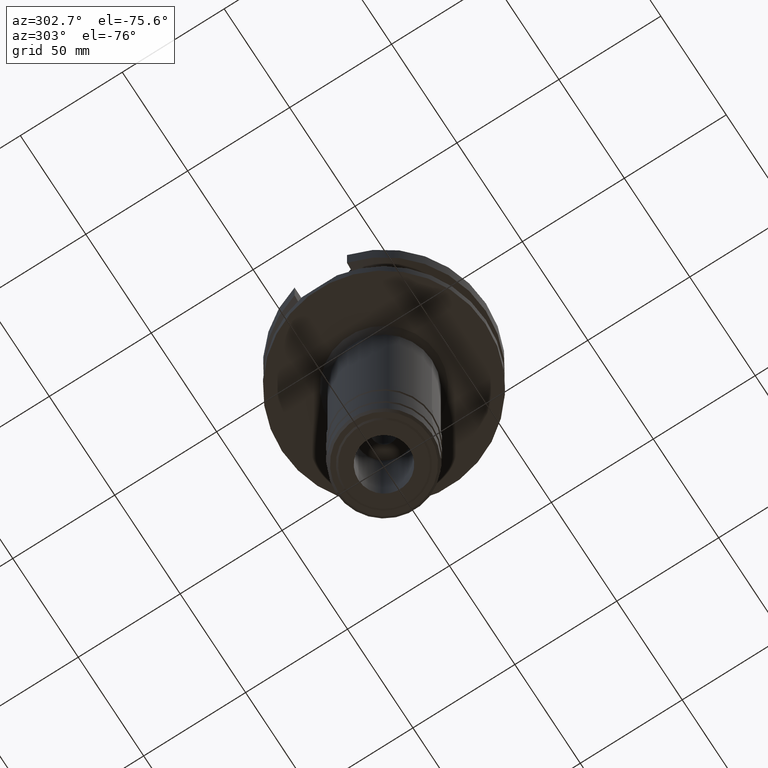
[diagram: clean part render]
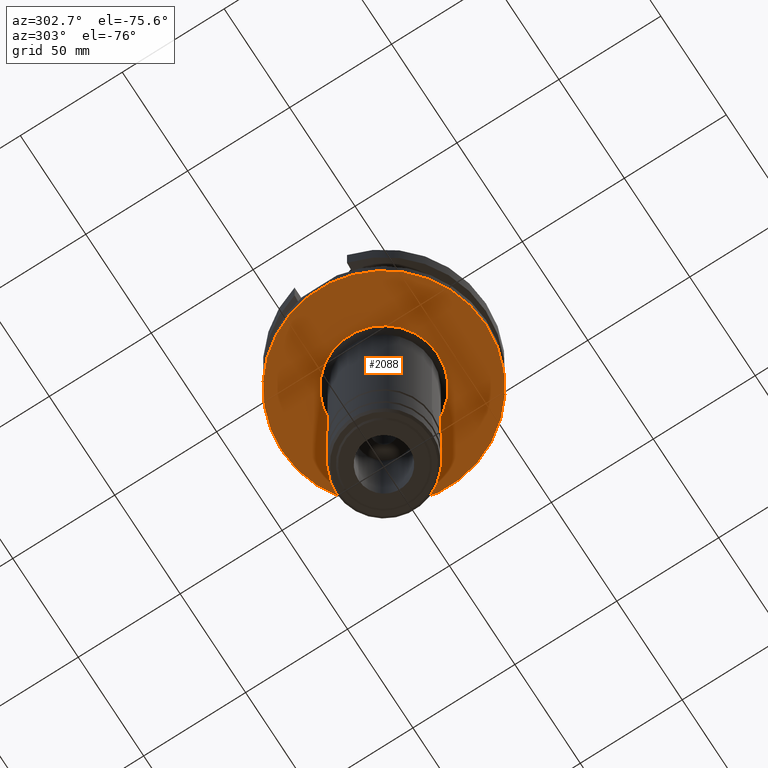
[diagram: same view with one face highlighted and labeled with its STEP entity id]
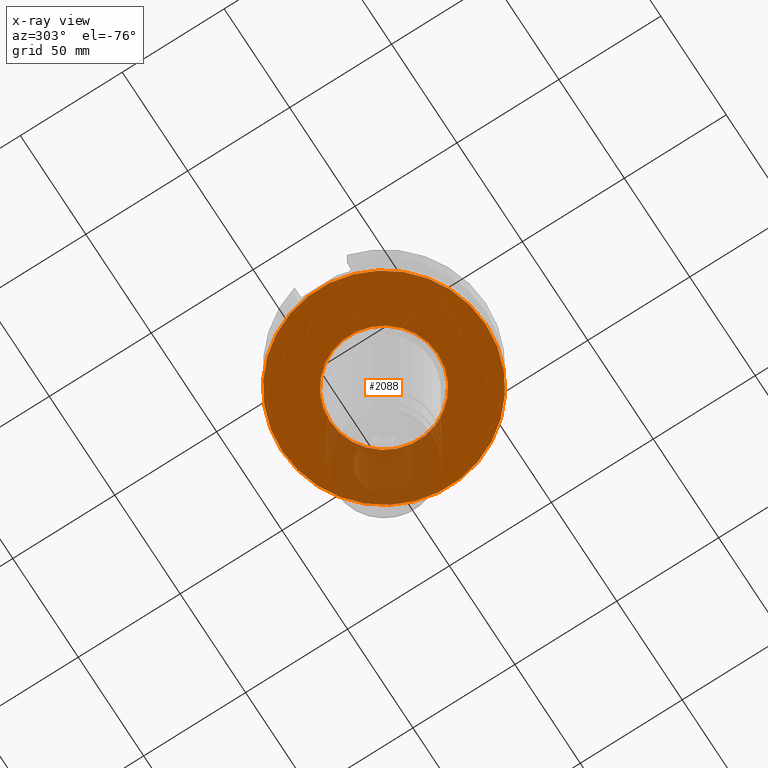
[diagram: x-ray of the same camera — body ghosted, the highlighted face saturated]
A machine part, auxiliary view. The second image highlights one B-rep face of the part: STEP entity #2088.
The next image is the same camera in x-ray: the body ghosted, the highlighted face saturated — about 21% of this face is hidden behind the body in this view.
In plain terms, the highlighted planar face has unit normal (0, 0, -1).
Its self-contained STEP definition (entity closure, byte-faithful):
#638=CARTESIAN_POINT('',(0.E0,2.634705123686E-14,-3.8E1));
#639=DIRECTION('',(0.E0,0.E0,1.E0));
#640=DIRECTION('',(0.E0,-1.E0,0.E0));
#641=AXIS2_PLACEMENT_3D('',#638,#639,#640);
#646=CARTESIAN_POINT('',(0.E0,2.634705123686E-14,-3.8E1));
#647=DIRECTION('',(0.E0,0.E0,1.E0));
#648=DIRECTION('',(0.E0,1.E0,0.E0));
#649=AXIS2_PLACEMENT_3D('',#646,#647,#648);
#654=CARTESIAN_POINT('',(0.E0,0.E0,-3.8E1));
#655=DIRECTION('',(0.E0,0.E0,-1.E0));
#656=DIRECTION('',(0.E0,-1.E0,0.E0));
#657=AXIS2_PLACEMENT_3D('',#654,#655,#656);
#662=CARTESIAN_POINT('',(0.E0,0.E0,-3.8E1));
#663=DIRECTION('',(0.E0,0.E0,-1.E0));
#664=DIRECTION('',(0.E0,1.E0,0.E0));
#665=AXIS2_PLACEMENT_3D('',#662,#663,#664);
#1374=CARTESIAN_POINT('',(0.E0,2.65E1,-3.8E1));
#1375=VERTEX_POINT('',#1374);
#1376=CARTESIAN_POINT('',(0.E0,-2.65E1,-3.8E1));
#1377=VERTEX_POINT('',#1376);
#1378=CARTESIAN_POINT('',(0.E0,-5.E1,-3.8E1));
#1379=CARTESIAN_POINT('',(0.E0,5.E1,-3.8E1));
#1380=VERTEX_POINT('',#1378);
#1381=VERTEX_POINT('',#1379);
#2073=CARTESIAN_POINT('',(0.E0,0.E0,-3.8E1));
#2074=DIRECTION('',(0.E0,0.E0,-1.E0));
#2075=DIRECTION('',(0.E0,-1.E0,0.E0));
#2076=AXIS2_PLACEMENT_3D('',#2073,#2074,#2075);
#2077=PLANE('',#2076);
#2079=ORIENTED_EDGE('',*,*,#2078,.T.);
#2081=ORIENTED_EDGE('',*,*,#2080,.T.);
#2082=EDGE_LOOP('',(#2079,#2081));
#2083=FACE_OUTER_BOUND('',#2082,.F.);
#2084=ORIENTED_EDGE('',*,*,#2066,.T.);
#2085=ORIENTED_EDGE('',*,*,#2055,.T.);
#2086=EDGE_LOOP('',(#2084,#2085));
#2087=FACE_BOUND('',#2086,.F.);
#642=CIRCLE('',#641,5.E1);
#650=CIRCLE('',#649,5.E1);
#658=CIRCLE('',#657,2.65E1);
#666=CIRCLE('',#665,2.65E1);
#2055=EDGE_CURVE('',#1375,#1377,#666,.T.);
#2066=EDGE_CURVE('',#1377,#1375,#658,.T.);
#2078=EDGE_CURVE('',#1380,#1381,#642,.T.);
#2080=EDGE_CURVE('',#1381,#1380,#650,.T.);
#2088=ADVANCED_FACE('',(#2083,#2087),#2077,.T.);